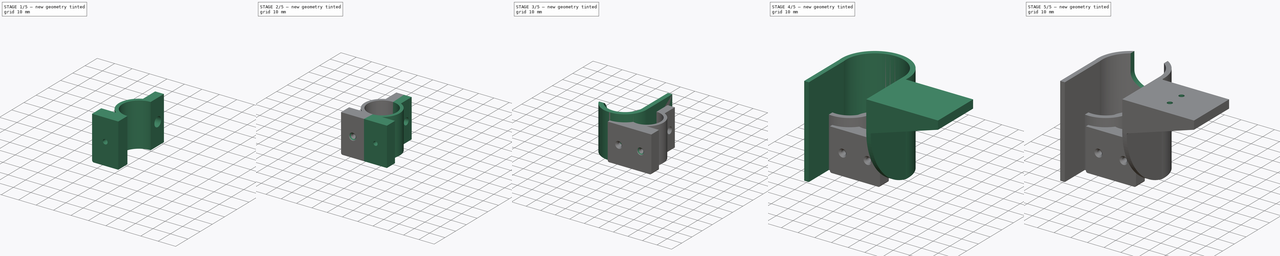
[diagram: build sequence overview — one tinted view per stage of 5, left to right]
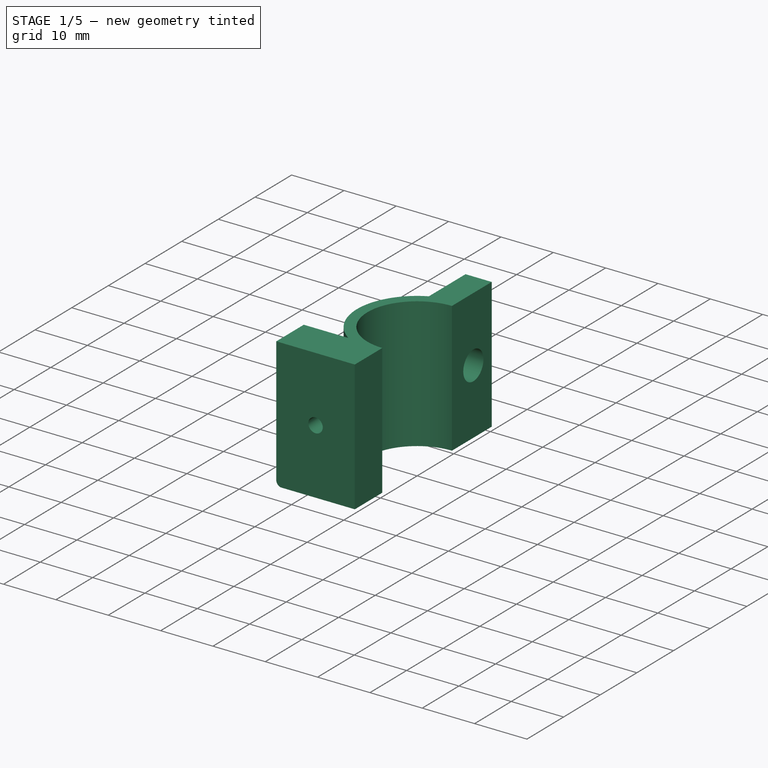
[diagram: stage 1 of 5 — iso view after this stage's code; geometry added in this stage tinted green]
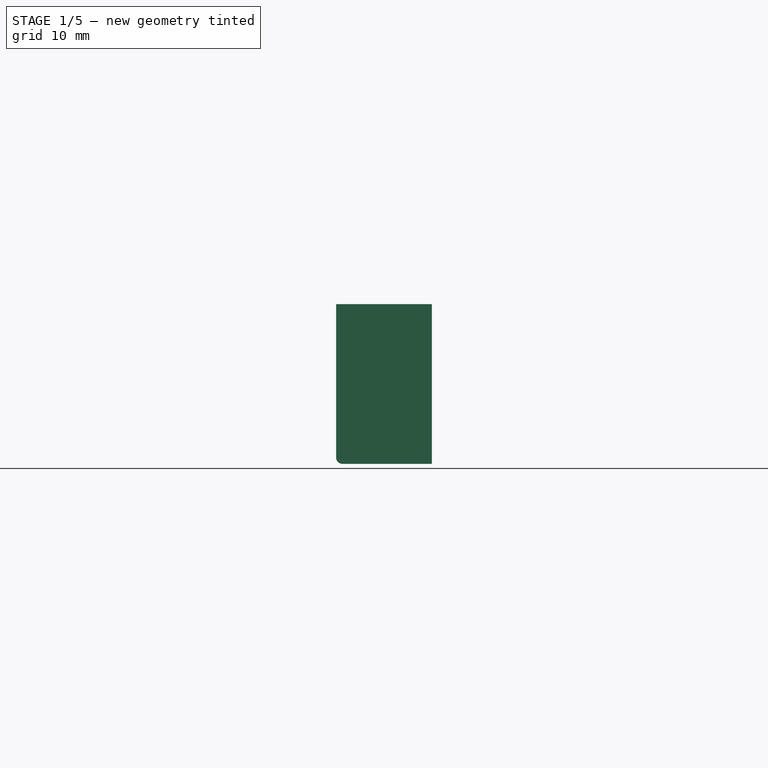
[diagram: stage 1 of 5 — front view after this stage's code; geometry added in this stage tinted green]
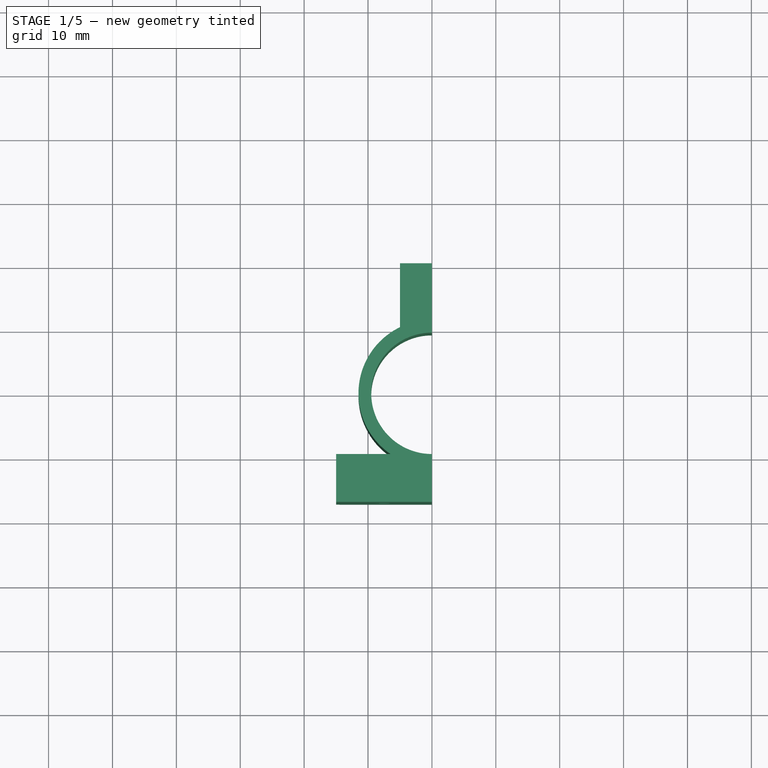
[diagram: stage 1 of 5 — top view after this stage's code; geometry added in this stage tinted green]
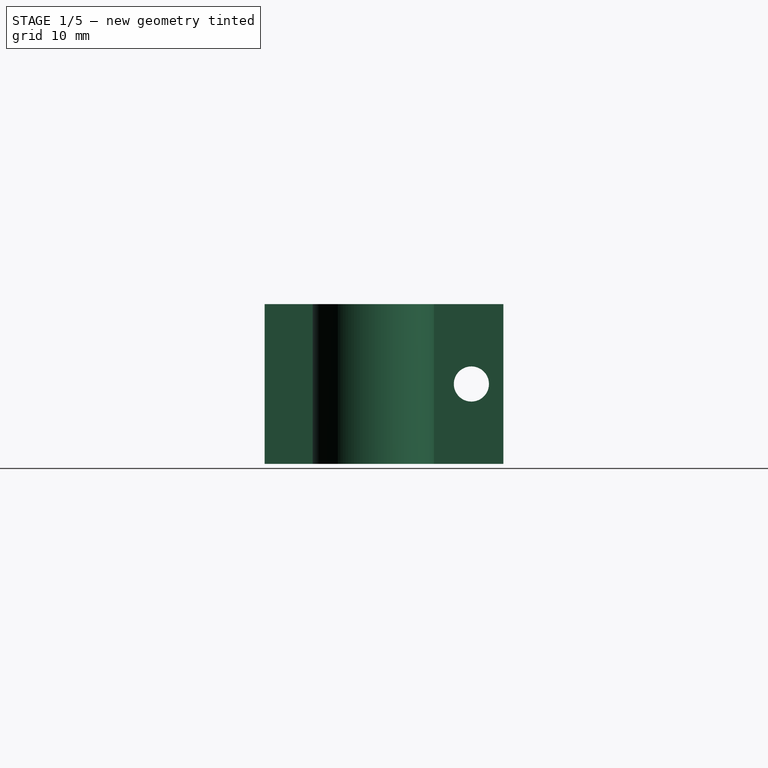
[diagram: stage 1 of 5 — right view after this stage's code; geometry added in this stage tinted green]
FCSTD DOCUMENT  (FreeCAD 1.1R14555 (Git shallow))
Label: hook
License: All rights reserved
LicenseURL: https://en.wikipedia.org/wiki/All_rights_reserved
objects: Sketcher::SketchObject×13, PartDesign::Pocket×8, PartDesign::Fillet×6, PartDesign::Pad×5, App::Point×4, PartDesign::Body×4, PartDesign::Chamfer×2
note: 93 computed .brp shape members not serialized (recipe doc carries the construction recipe); baked Part::Feature solids carry a one-line shape summary decoded from their .brp

FEATURE [PartDesign::Pad] Pad004
  Direction = (0,0,1)
  Length = 25
  Length2 = 10
  Profile = -> Sketch008
  ReferenceAxis = -> Sketch008 [N_Axis]
  Refine = true
  SideType = 0
  Suppressed = false
  Type = 0
  Type2 = 0
FEATURE [Sketcher::SketchObject] Sketch011
  ArcFitTolerance = 1e-06
  AttachmentSupport = -> [Pad004]
  ExternalGeometry = -> [Pad004]
  ExternalTypes = [0]
  FullyConstrained = true
  MakeInternals = false
  MapMode = 5
  Placement = pos=(0,-16.9984,0) rot=(1,0,0;1.5708rad)
  sketch-geometry (1):
    g0: Circle CenterX=-7.5 CenterY=12.5 CenterZ=0 NormalX=0 NormalY=0 NormalZ=1 AngleXU=0 Radius=1.375
  constraints (2):
    c: Diameter(g0) = 2.75
    c: Symmetric(g-3,g-1,g0)
FEATURE [PartDesign::Pocket] Pocket007
  BaseFeature = -> Pad004
  Direction = (0,1,-2e-16)
  Length = 7
  Length2 = 5
  Profile = -> Sketch011
  ReferenceAxis = -> Sketch011 [N_Axis]
  Refine = true
  SideType = 0
  Suppressed = false
  Type = 0
  Type2 = 0
FEATURE [Sketcher::SketchObject] Sketch012
  ArcFitTolerance = 1e-06
  AttachmentSupport = -> [Pocket007]
  ExternalGeometry = -> [Pocket007]
  ExternalTypes = [0,0]
  FullyConstrained = true
  MakeInternals = false
  MapMode = 5
  Placement = pos=(-5,0,0) rot=(0.57735,-0.57735,-0.57735;2.0944rad)
  sketch-geometry (1):
    g0: Circle CenterX=-15.3562 CenterY=12.5 CenterZ=0 NormalX=0 NormalY=0 NormalZ=1 AngleXU=0 Radius=2.75
  constraints (2):
    c: Diameter(g0) = 5.5
    c: Symmetric(g-4,g-3,g0)
FEATURE [PartDesign::Pocket] Pocket008
  BaseFeature = -> Pocket007
  Direction = (1,0,0)
  Length = 7
  Length2 = 5
  Profile = -> Sketch012
  ReferenceAxis = -> Sketch012 [N_Axis]
  Refine = true
  SideType = 0
  Suppressed = false
  Type = 0
  Type2 = 0
FEATURE [PartDesign::Fillet] Fillet012
  Base = -> Pocket008 [Edge14]
  BaseFeature = -> Pocket008
  Radius = 1
  Refine = true
  SupportTransform = false
  Suppressed = false
  UseAllEdges = false
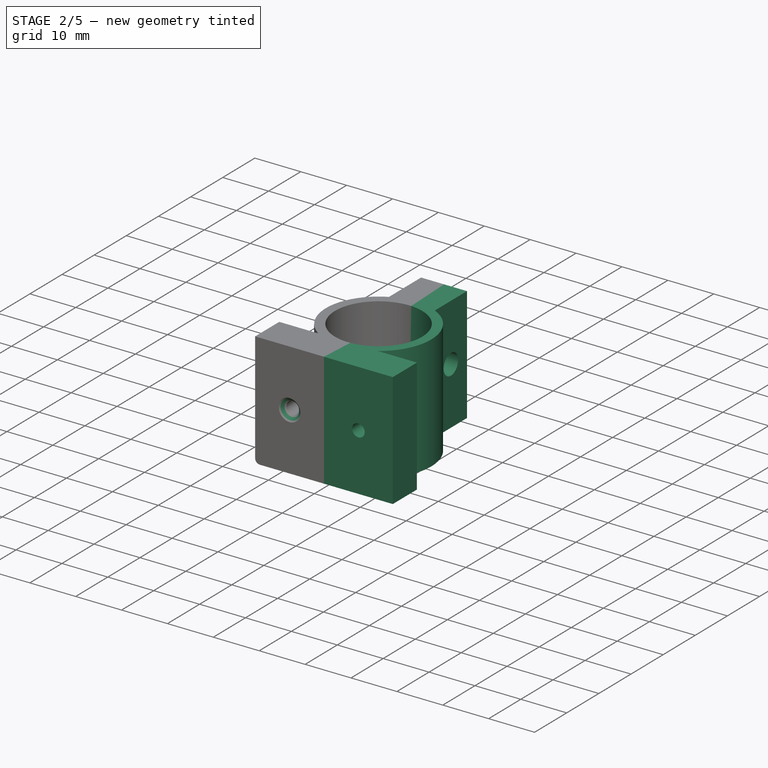
[diagram: stage 2 of 5 — iso view after this stage's code; geometry added in this stage tinted green]
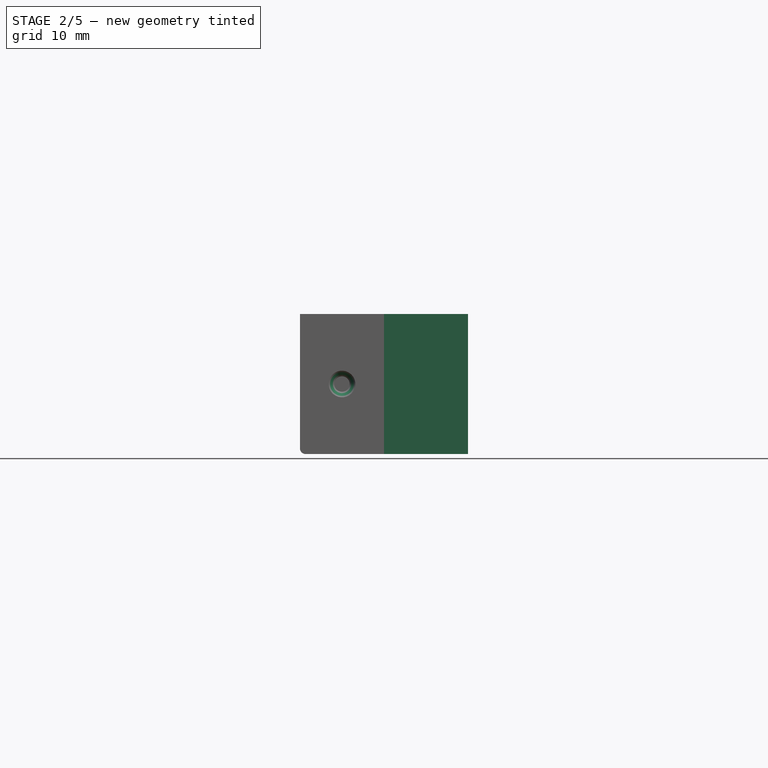
[diagram: stage 2 of 5 — front view after this stage's code; geometry added in this stage tinted green]
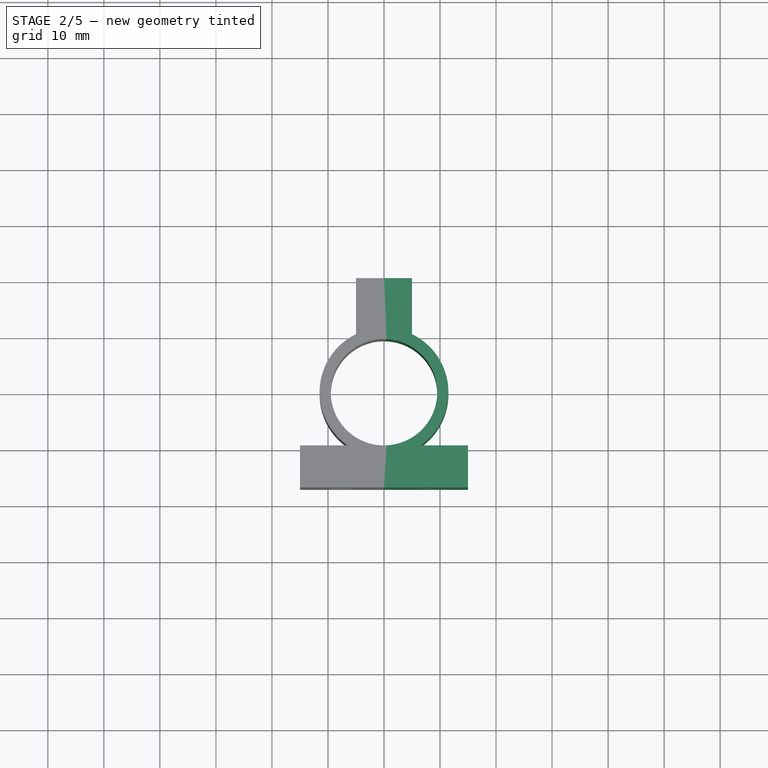
[diagram: stage 2 of 5 — top view after this stage's code; geometry added in this stage tinted green]
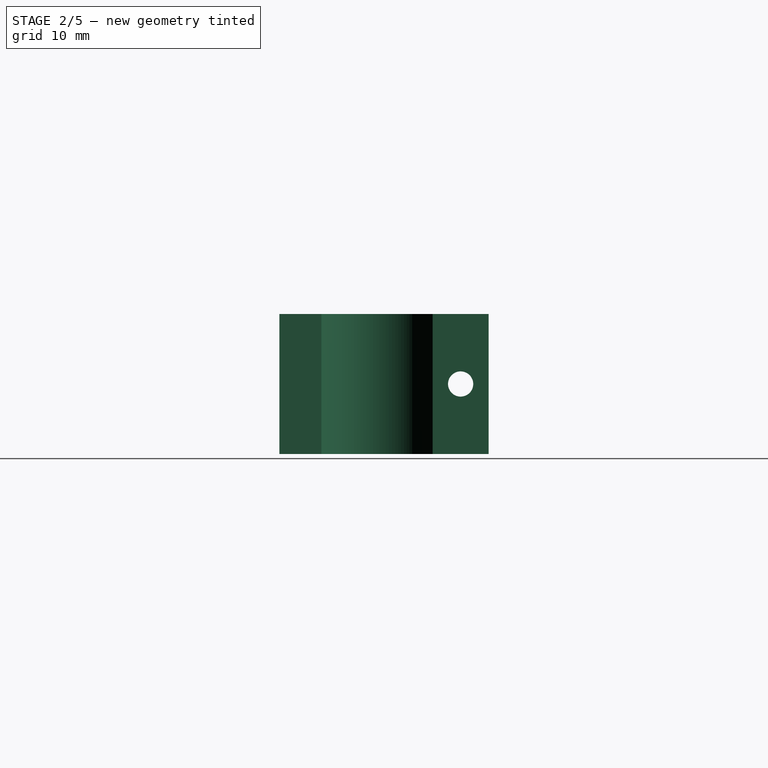
[diagram: stage 2 of 5 — right view after this stage's code; geometry added in this stage tinted green]
FEATURE [PartDesign::Body] Body
  AllowCompound = true
  Group = -> [Sketch,Pad,Sketch001,Pocket,Sketch002,Pad001,Sketch003,Pocket003,Fillet,Fillet008,Sketch006,Pocket004]
  Origin = -> Origin
  Tip = -> Pocket004
FEATURE [App::Point] Origin005
  Role = Origin
FEATURE [Sketcher::SketchObject] Sketch007
  ArcFitTolerance = 1e-06
  AttachmentSupport = -> [Origin004]
  ExternalTypes = [0]
  FullyConstrained = false
  MakeInternals = false
  MapMode = 5
  sketch-geometry (10):
    g0: ArcOfCircle CenterX=0 CenterY=0 CenterZ=0 NormalX=0 NormalY=0 NormalZ=1 AngleXU=0 Radius=9.5 StartAngle=4.71239 EndAngle=7.85398
    g1: ArcOfCircle CenterX=0 CenterY=0 CenterZ=0 NormalX=0 NormalY=0 NormalZ=1 AngleXU=0 Radius=11.5 StartAngle=5.31103 EndAngle=7.40418
    g2: LineSegment StartX=-1.7e-15 StartY=-9.5 StartZ=0 EndX=-1.7e-15 EndY=-17 EndZ=0
    g3: LineSegment StartX=2.9e-15 StartY=20.3562 StartZ=0 EndX=2.9e-15 EndY=10.3562 EndZ=0
    g4: LineSegment StartX=5 StartY=10.3562 StartZ=0 EndX=5 EndY=20.3562 EndZ=0
    g5: LineSegment StartX=5 StartY=20.3562 StartZ=0 EndX=2.7e-15 EndY=20.3562 EndZ=0
    g6: LineSegment StartX=2.9e-15 StartY=9.5 StartZ=0 EndX=2.9e-15 EndY=10.3562 EndZ=0
    g7: LineSegment StartX=-1.7e-15 StartY=-17 StartZ=0 EndX=15 EndY=-17 EndZ=0
    g8: LineSegment StartX=15 StartY=-17 StartZ=0 EndX=15 EndY=-9.5 EndZ=0
    g9: LineSegment StartX=15 StartY=-9.5 StartZ=0 EndX=6.48052 EndY=-9.50015 EndZ=0
  constraints (27):
    c: Coincident(g0,g-1)
    c: Coincident(g1,g0)
    c: Diameter(g0) = 19
    c: Coincident(g2,g0)
    c: Vertical(g2)
    c: Coincident(g4,g5)
    c: Coincident(g5,g3)
    c: Vertical(g3)
    c: Vertical(g4)
    c: Horizontal(g5)
    c: PointOnObject(g3,g-2)
    c: Distance(g5,g5) = 5
    c: DistanceY(g4,g4) = 10
    c: Coincident(g4,g1)
    c: Coincident(g6,g0)
    c: Coincident(g6,g3)
    c: Vertical(g6)
    c: PointOnObject(g0,g-2)
    c: DistanceY(g2,g2) = 7.5
    c: Coincident(g7,g2)
    c: Horizontal(g7)
    c: DistanceX(g7,g7) = 15
    c: Coincident(g8,g7)
    c: Vertical(g8)
    c: Coincident(g9,g8)
    c: Diameter(g1) = 23
    c: Coincident(g1,g9)
FEATURE [PartDesign::Pad] Pad003
  Direction = (0,0,1)
  Length = 25
  Length2 = 10
  Profile = -> Sketch007
  ReferenceAxis = -> Sketch007 [N_Axis]
  Refine = true
  SideType = 0
  Suppressed = false
  Type = 0
  Type2 = 0
FEATURE [App::Point] Origin007
  Role = Origin
FEATURE [Sketcher::SketchObject] Sketch008
  ArcFitTolerance = 1e-06
  AttachmentSupport = -> [Origin006]
  ExternalTypes = [0]
  FullyConstrained = false
  MakeInternals = false
  MapMode = 5
  sketch-geometry (9):
    g0: ArcOfCircle CenterX=0 CenterY=0 CenterZ=0 NormalX=0 NormalY=0 NormalZ=1 AngleXU=0 Radius=9.5 StartAngle=1.5708 EndAngle=4.71239
    g1: ArcOfCircle CenterX=0 CenterY=0 CenterZ=0 NormalX=0 NormalY=0 NormalZ=1 AngleXU=0 Radius=11.5 StartAngle=2.02059 EndAngle=4.11348
    g2: LineSegment StartX=-1.7e-15 StartY=-9.5 StartZ=0 EndX=-1.7e-15 EndY=-16.9984 EndZ=0
    g3: LineSegment StartX=6e-16 StartY=9.5 StartZ=0 EndX=6e-16 EndY=20.3562 EndZ=0
    g4: LineSegment StartX=-6.48303 StartY=-9.49844 StartZ=0 EndX=-15 EndY=-9.49844 EndZ=0
    g5: LineSegment StartX=-15 StartY=-9.49844 StartZ=0 EndX=-15 EndY=-16.9984 EndZ=0
    g6: LineSegment StartX=-15 StartY=-16.9984 StartZ=0 EndX=-1.8e-15 EndY=-16.9984 EndZ=0
    g7: LineSegment StartX=-5 StartY=10.3562 StartZ=0 EndX=-5 EndY=20.3562 EndZ=0
    g8: LineSegment StartX=-5 StartY=20.3562 StartZ=0 EndX=9e-16 EndY=20.3562 EndZ=0
  constraints (26):
    c: Coincident(g0,g-1)
    c: Coincident(g1,g0)
    c: PointOnObject(g0,g-2)
    c: Vertical(g2)
    c: Diameter(g0) = 19
    c: Coincident(g2,g0)
    c: Vertical(g3)
    c: Coincident(g4,g5)
    c: Coincident(g5,g6)
    c: Horizontal(g6)
    c: Vertical(g5)
    c: DistanceX(g6,g6) = 15
    c: PointOnObject(g0,g-2)
    c: DistanceY(g5,g5) = 7.5
    c: Diameter(g1) = 23
    c: Horizontal(g4)
    c: Coincident(g1,g4)
    c: Coincident(g2,g6)
    c: Coincident(g3,g0)
    c: Coincident(g7,g1)
    c: Vertical(g7)
    c: DistanceY(g7,g7) = 10
    c: Coincident(g8,g7)
    c: Coincident(g3,g8)
    c: Horizontal(g8)
    c: DistanceX(g8,g8) = 5
FEATURE [Sketcher::SketchObject] Sketch009
  ArcFitTolerance = 1e-06
  AttachmentSupport = -> [Pad003]
  ExternalGeometry = -> [Pad003]
  ExternalTypes = [0,0]
  FullyConstrained = true
  MakeInternals = false
  MapMode = 5
  Placement = pos=(0,-17,0) rot=(1,0,0;1.5708rad)
  sketch-geometry (1):
    g0: Circle CenterX=7.5 CenterY=12.5 CenterZ=0 NormalX=0 NormalY=0 NormalZ=1 AngleXU=0 Radius=1.375
  constraints (2):
    c: Diameter(g0) = 2.75
    c: Symmetric(g-4,g-3,g0)
FEATURE [PartDesign::Pocket] Pocket005
  BaseFeature = -> Pad003
  Direction = (0,1,-2e-16)
  Length = 7
  Length2 = 5
  Profile = -> Sketch009
  ReferenceAxis = -> Sketch009 [N_Axis]
  Refine = true
  SideType = 0
  Suppressed = false
  Type = 0
  Type2 = 0
FEATURE [Sketcher::SketchObject] Sketch010
  ArcFitTolerance = 1e-06
  AttachmentSupport = -> [Pocket005]
  ExternalGeometry = -> [Pocket005]
  ExternalTypes = [0,0]
  FullyConstrained = true
  MakeInternals = false
  MapMode = 5
  Placement = pos=(5,0,0) rot=(0.57735,0.57735,0.57735;2.0944rad)
  sketch-geometry (1):
    g0: Circle CenterX=15.3562 CenterY=12.5 CenterZ=0 NormalX=0 NormalY=0 NormalZ=1 AngleXU=0 Radius=2.25
  constraints (2):
    c: Diameter(g0) = 4.5
    c: Symmetric(g-4,g-3,g0)
FEATURE [PartDesign::Pocket] Pocket006
  BaseFeature = -> Pocket005
  Direction = (-1,0,0)
  Length = 5
  Length2 = 5
  Profile = -> Sketch010
  ReferenceAxis = -> Sketch010 [N_Axis]
  Refine = true
  SideType = 0
  Suppressed = false
  Type = 0
  Type2 = 0
FEATURE [PartDesign::Body] Body002  label="left"
  AllowCompound = true
  Group = -> [Sketch007,Pad003,Sketch009,Pocket005,Sketch010,Pocket006,Fillet011,Chamfer]
  Origin = -> Origin004
  Tip = -> Chamfer
FEATURE [PartDesign::Chamfer] Chamfer001
  Angle = 45
  Base = -> Fillet012 [Edge14]
  BaseFeature = -> Fillet012
  ChamferType = 0
  FlipDirection = false
  Refine = true
  Size = 1
  Size2 = 1
  SupportTransform = false
  Suppressed = false
  UseAllEdges = false
FEATURE [PartDesign::Body] Body003  label="right"
  AllowCompound = true
  Group = -> [Sketch008,Pad004,Sketch011,Pocket007,Sketch012,Pocket008,Fillet012,Chamfer001]
  Origin = -> Origin006
  Tip = -> Chamfer001
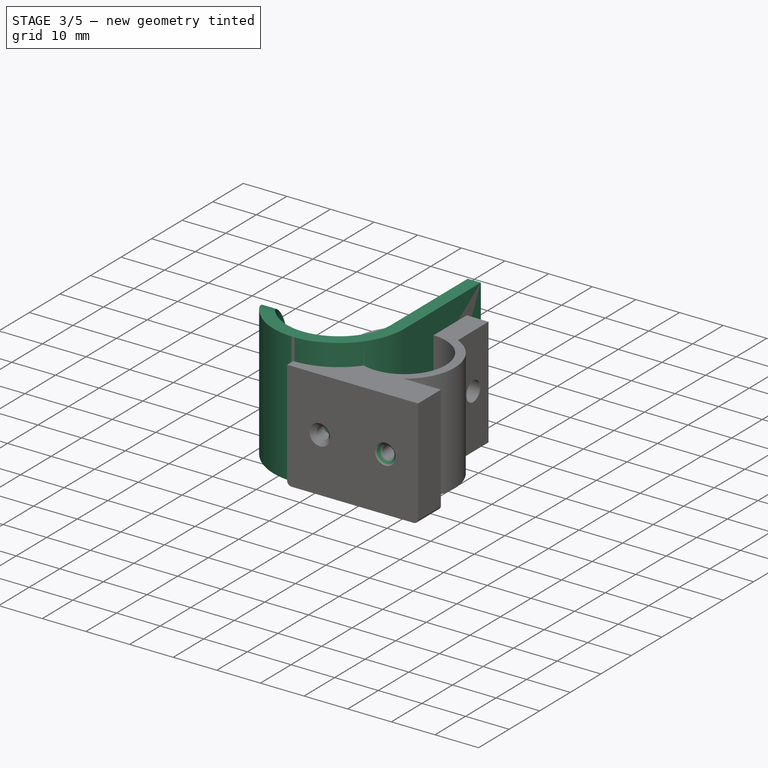
[diagram: stage 3 of 5 — iso view after this stage's code; geometry added in this stage tinted green]
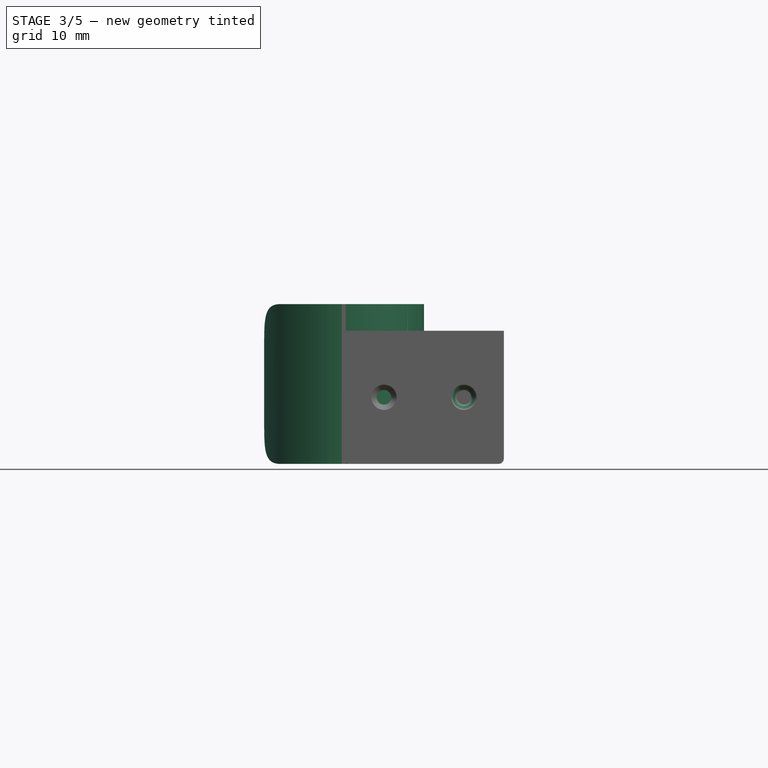
[diagram: stage 3 of 5 — front view after this stage's code; geometry added in this stage tinted green]
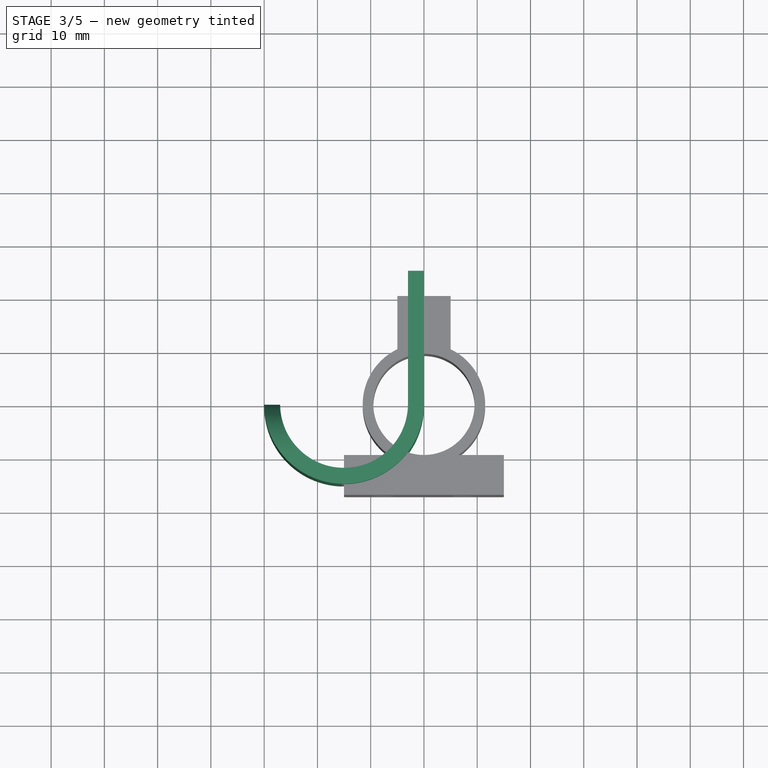
[diagram: stage 3 of 5 — top view after this stage's code; geometry added in this stage tinted green]
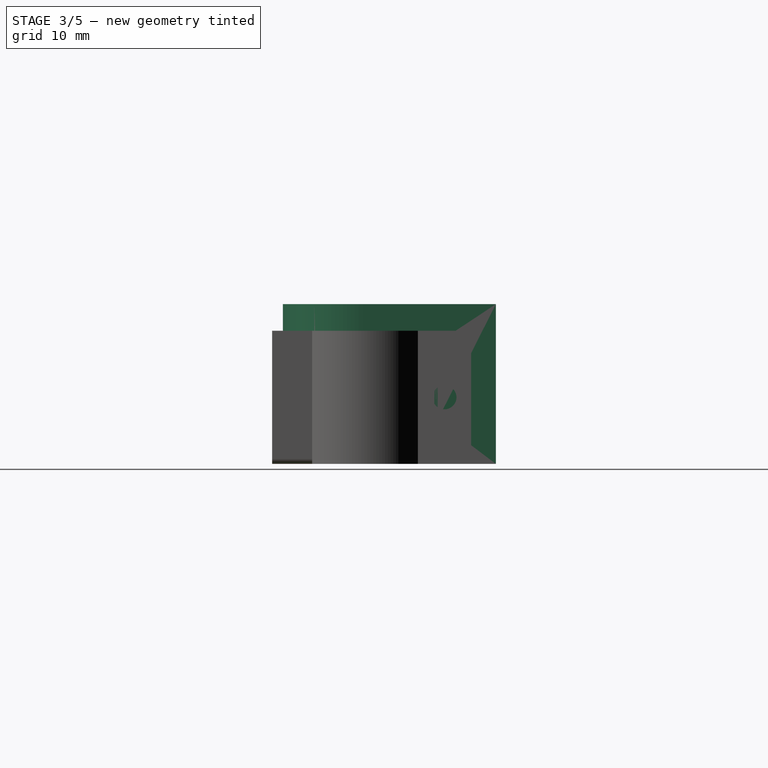
[diagram: stage 3 of 5 — right view after this stage's code; geometry added in this stage tinted green]
FEATURE [Sketcher::SketchObject] Sketch003
  ArcFitTolerance = 1e-06
  AttachmentSupport = -> [Pad001]
  ExternalGeometry = -> [Pad001]
  ExternalTypes = [0,0]
  FullyConstrained = true
  MakeInternals = false
  MapMode = 5
  Placement = pos=(0,0,54) rot=(0,0,1;0rad)
  sketch-geometry (2):
    g0: Circle CenterX=38.75 CenterY=-12 CenterZ=0 NormalX=0 NormalY=0 NormalZ=1 AngleXU=0 Radius=1.5
    g1: Circle CenterX=38.75 CenterY=-22 CenterZ=0 NormalX=0 NormalY=0 NormalZ=1 AngleXU=0 Radius=1.5
  constraints (6):
    c: Equal(g1,g0)
    c: Vertical(g0,g1)
    c: Diameter(g0) = 3
    c: DistanceY(g1,g0) = 10
    c: DistanceY(g0,g-3) = 10
    c: DistanceX(g-4,g1) = 21.5
FEATURE [App::Point] Origin003
  Role = Origin
FEATURE [Sketcher::SketchObject] Sketch004
  ArcFitTolerance = 1e-06
  AttachmentSupport = -> [Origin002]
  ExternalTypes = [0]
  FullyConstrained = false
  MakeInternals = false
  MapMode = 5
  sketch-geometry (6):
    g0: LineSegment StartX=-2.3537e-12 StartY=25 StartZ=0 EndX=-3 EndY=25 EndZ=0
    g1: LineSegment StartX=-3 StartY=25 StartZ=0 EndX=-3 EndY=-3.6e-15 EndZ=0
    g2: LineSegment StartX=-2.3537e-12 StartY=-1.69368e-11 StartZ=0 EndX=-2.3537e-12 EndY=25 EndZ=0
    g3: ArcOfCircle CenterX=-15 CenterY=0 CenterZ=0 NormalX=0 NormalY=0 NormalZ=1 AngleXU=0 Radius=15 StartAngle=3.14114 EndAngle=6.28319
    g4: ArcOfCircle CenterX=-15 CenterY=0 CenterZ=0 NormalX=0 NormalY=0 NormalZ=1 AngleXU=0 Radius=12 StartAngle=3.14103 EndAngle=6.28319
    g5: LineSegment StartX=-30 StartY=0.00680241 StartZ=0 EndX=-27 EndY=0.00680241 EndZ=0
  constraints (17):
    c: Coincident(g0,g1)
    c: Coincident(g2,g0)
    c: Horizontal(g0)
    c: Vertical(g1)
    c: Vertical(g2)
    c: PointOnObject(g1,g-1)
    c: DistanceX(g0,g0) = 3
    c: DistanceY(g2,g2) = 25
    c: PointOnObject(g3,g-1)
    c: Coincident(g4,g3)
    c: Horizontal(g5)
    c: Coincident(g5,g3)
    c: Diameter(g4) = 24
    c: Coincident(g5,g4)
    c: Coincident(g4,g1)
    c: Coincident(g2,g3)
    c: Coincident(g2,g-1)
FEATURE [PartDesign::Pad] Pad002
  Direction = (0,0,1)
  Length = 30
  Length2 = 10
  Profile = -> Sketch004
  ReferenceAxis = -> Sketch004 [N_Axis]
  Refine = true
  SideType = 0
  Suppressed = false
  Type = 0
  Type2 = 0
FEATURE [PartDesign::Pocket] Pocket009
  BaseFeature = -> Pad002
  Direction = (1,0,0)
  Length = 5
  Length2 = 5
  Profile = -> Sketch005
  ReferenceAxis = -> Sketch005 [N_Axis]
  Refine = true
  SideType = 0
  Suppressed = false
  Type = 1
  Type2 = 0
FEATURE [PartDesign::Fillet] Fillet009
  Base = -> Pocket009 [Edge19,Edge16]
  BaseFeature = -> Pocket009
  Radius = 9
  Refine = true
  SupportTransform = false
  Suppressed = false
  UseAllEdges = false
FEATURE [PartDesign::Body] Body001  label="hook"
  AllowCompound = true
  Group = -> [Sketch004,Pad002,Sketch005,Pocket009,Fillet009,Fillet010]
  Origin = -> Origin002
  Placement = pos=(15,-17.1,25) rot=(0.57735,0.57735,-0.57735;4.18879rad)
  Tip = -> Fillet010
FEATURE [PartDesign::Fillet] Fillet011
  Base = -> Pocket006 [Edge17]
  BaseFeature = -> Pocket006
  Radius = 1
  Refine = true
  SupportTransform = false
  Suppressed = false
  UseAllEdges = false
FEATURE [PartDesign::Chamfer] Chamfer
  Angle = 45
  Base = -> Fillet011 [Edge6]
  BaseFeature = -> Fillet011
  ChamferType = 0
  FlipDirection = false
  Refine = true
  Size = 1
  Size2 = 1
  SupportTransform = false
  Suppressed = false
  UseAllEdges = false
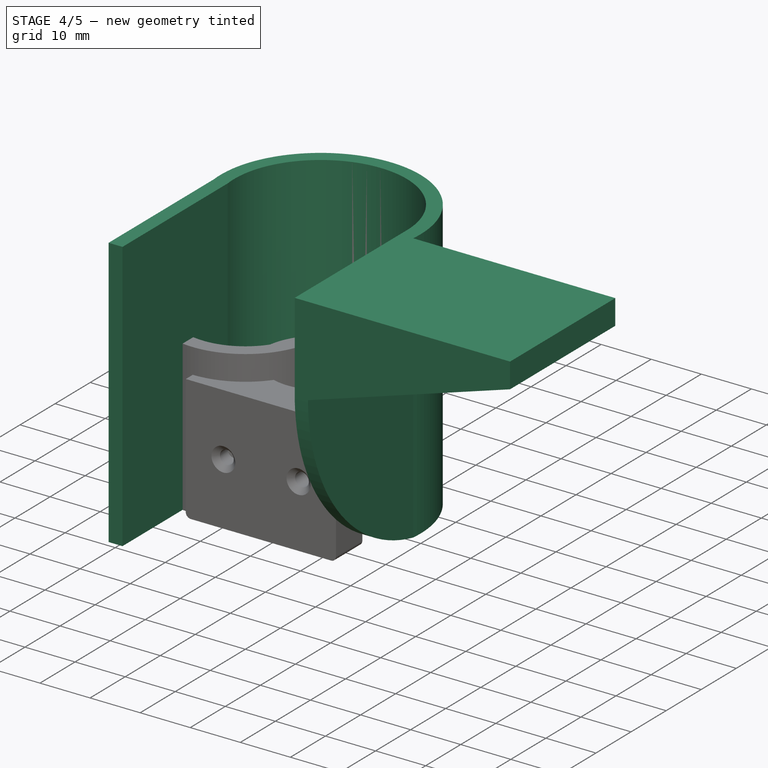
[diagram: stage 4 of 5 — iso view after this stage's code; geometry added in this stage tinted green]
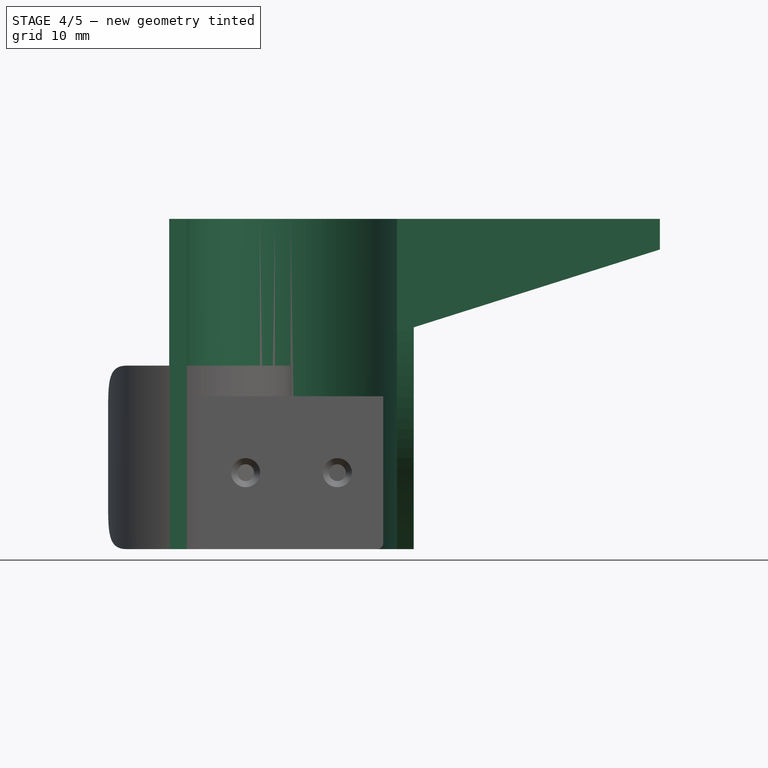
[diagram: stage 4 of 5 — front view after this stage's code; geometry added in this stage tinted green]
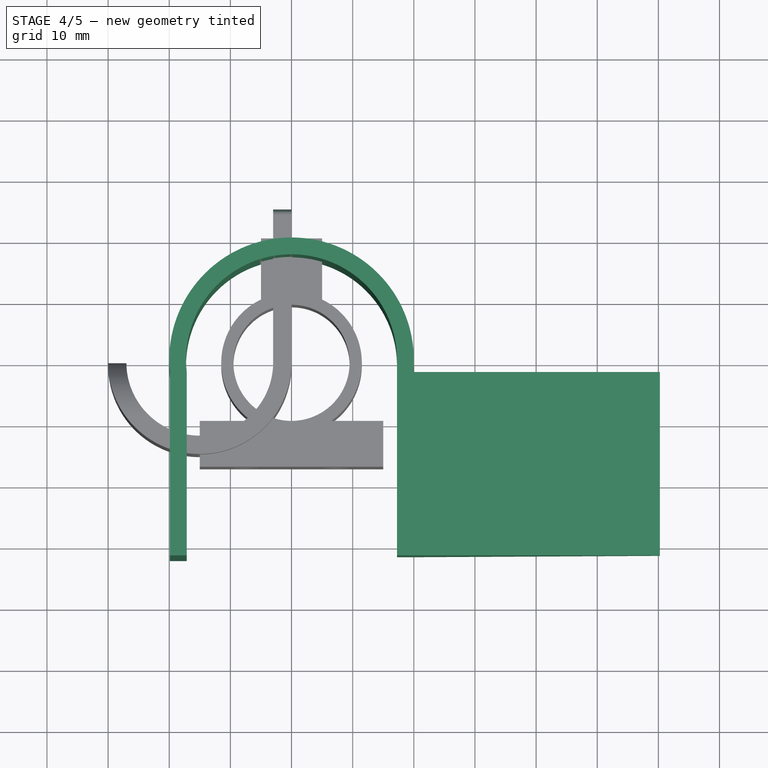
[diagram: stage 4 of 5 — top view after this stage's code; geometry added in this stage tinted green]
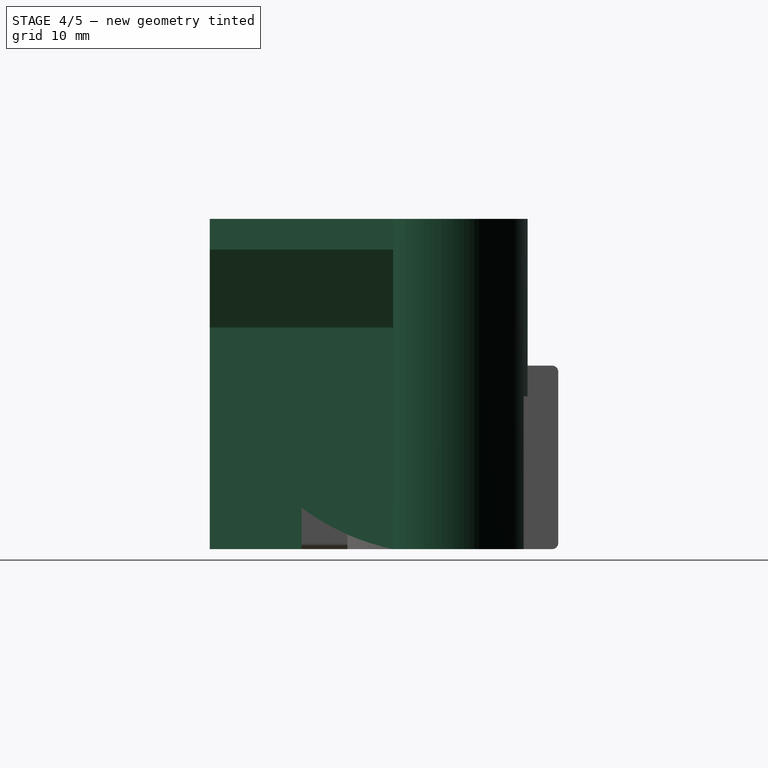
[diagram: stage 4 of 5 — right view after this stage's code; geometry added in this stage tinted green]
FEATURE [App::Point] Origin001
  Role = Origin
FEATURE [Sketcher::SketchObject] Sketch
  ArcFitTolerance = 1e-06
  AttachmentSupport = -> [Origin]
  ExternalTypes = [0]
  FullyConstrained = false
  MakeInternals = false
  MapMode = 5
  sketch-geometry (8):
    g0: ArcOfCircle CenterX=0 CenterY=0 CenterZ=0 NormalX=0 NormalY=0 NormalZ=1 AngleXU=0 Radius=20 StartAngle=6.18302 EndAngle=9.52495
    g1: ArcOfCircle CenterX=0 CenterY=0 CenterZ=0 NormalX=0 NormalY=0 NormalZ=1 AngleXU=0 Radius=17.25 StartAngle=2.25272e-06 EndAngle=3.25758
    g2: LineSegment StartX=-19.8997 StartY=-2 StartZ=0 EndX=-19.8997 EndY=-32 EndZ=0
    g3: LineSegment StartX=-19.8997 StartY=-32 StartZ=0 EndX=-17.1341 EndY=-32 EndZ=0
    g4: LineSegment StartX=-17.1341 StartY=-32 StartZ=0 EndX=-17.1341 EndY=-1.99631 EndZ=0
    g5: LineSegment StartX=17.25 StartY=3.88595e-05 StartZ=0 EndX=17.25 EndY=-32 EndZ=0
    g6: LineSegment StartX=19.8997 StartY=-32 StartZ=0 EndX=19.8997 EndY=-2 EndZ=0
    g7: LineSegment StartX=17.25 StartY=-32 StartZ=0 EndX=19.8997 EndY=-32 EndZ=0
  constraints (22):
    c: Coincident(g0,g-1)
    c: Coincident(g1,g0)
    c: Coincident(g2,g3)
    c: Coincident(g3,g4)
    c: Vertical(g2)
    c: Vertical(g4)
    c: Horizontal(g3)
    c: DistanceY(g2,g2) = 30
    c: Distance(g2,g-1) = 2
    c: Vertical(g5)
    c: Vertical(g6)
    c: Distance(g6,g-1) = 2
    c: DistanceY(g6,g6) = 30
    c: Diameter(g1) = 34.5
    c: Coincident(g5,g1)
    c: Coincident(g1,g4)
    c: Coincident(g0,g6)
    c: Diameter(g0) = 40
    c: Coincident(g2,g0)
    c: Horizontal(g5,g6)
    c: Coincident(g7,g5)
    c: Coincident(g7,g6)
FEATURE [PartDesign::Pad] Pad
  Direction = (0,0,1)
  Length = 54
  Length2 = 10
  Profile = -> Sketch
  ReferenceAxis = -> Sketch [N_Axis]
  Refine = true
  SideType = 0
  Suppressed = false
  Type = 0
  Type2 = 0
FEATURE [Sketcher::SketchObject] Sketch001
  ArcFitTolerance = 1e-06
  AttachmentSupport = -> [Pad]
  ExternalGeometry = -> [Pad]
  ExternalTypes = [0,0]
  FullyConstrained = false
  MakeInternals = false
  MapMode = 5
  Placement = pos=(19.8997,0,0) rot=(0.57735,0.57735,0.57735;2.0944rad)
  sketch-geometry (3):
    g0: ArcOfCircle CenterX=5.6649 CenterY=36.8933 CenterZ=0 NormalX=0 NormalY=0 NormalZ=1 AngleXU=0 Radius=37.6812 StartAngle=3.11222 EndAngle=4.50754
    g1: LineSegment StartX=-32 StartY=38 StartZ=0 EndX=-32 EndY=0 EndZ=0
    g2: LineSegment StartX=-32 StartY=0 StartZ=0 EndX=-2 EndY=0 EndZ=0
  constraints (7):
    c: PointOnObject(g0,g-4)
    c: Coincident(g0,g-3)
    c: Coincident(g1,g0)
    c: Coincident(g1,g-4)
    c: Coincident(g2,g1)
    c: Coincident(g2,g0)
    c: DistanceY(g0,g-4) = 16
FEATURE [PartDesign::Pocket] Pocket
  BaseFeature = -> Pad
  Direction = (-1,0,0)
  Length = 5
  Length2 = 5
  Profile = -> Sketch001
  ReferenceAxis = -> Sketch001 [N_Axis]
  Refine = true
  SideType = 0
  Suppressed = false
  Type = 2
  Type2 = 0
FEATURE [Sketcher::SketchObject] Sketch002
  ArcFitTolerance = 1e-06
  AttachmentSupport = -> [Pocket]
  ExternalGeometry = -> [Pocket]
  ExternalTypes = [0]
  FullyConstrained = false
  MakeInternals = false
  MapMode = 5
  Placement = pos=(0,-32,0) rot=(1,0,0;1.5708rad)
  sketch-geometry (4):
    g0: LineSegment StartX=60.2497 StartY=49 StartZ=0 EndX=60.2497 EndY=54 EndZ=0
    g1: LineSegment StartX=60.2497 StartY=54 StartZ=0 EndX=19.3997 EndY=54 EndZ=0
    g2: LineSegment StartX=19.3997 StartY=36.0818 StartZ=0 EndX=60.2497 EndY=49 EndZ=0
    g3: LineSegment StartX=19.3997 StartY=54 StartZ=0 EndX=19.3997 EndY=36.0818 EndZ=0
  constraints (11):
    c: Coincident(g0,g1)
    c: Horizontal(g1)
    c: DistanceX(g1,g1) = 40.85
    c: Distance(g2,g1) = 5
    c: Vertical(g0)
    c: Coincident(g2,g0)
    c: Vertical(g1,g2)
    c: Coincident(g3,g1)
    c: Coincident(g3,g2)
    c: Horizontal(g1,g-3)
    c: DistanceX(g2,g-3) = 0.5
FEATURE [PartDesign::Pad] Pad001
  BaseFeature = -> Pocket
  Direction = (0,-1,2e-16)
  Length = 30
  Length2 = 10
  Profile = -> Sketch002
  ReferenceAxis = -> Sketch002 [N_Axis]
  Refine = true
  Reversed = true
  SideType = 0
  Suppressed = false
  Type = 0
  Type2 = 0
FEATURE [PartDesign::Fillet] Fillet010
  Base = -> Fillet009 [Edge23,Edge5]
  BaseFeature = -> Fillet009
  Radius = 1
  Refine = true
  SupportTransform = false
  Suppressed = false
  UseAllEdges = false
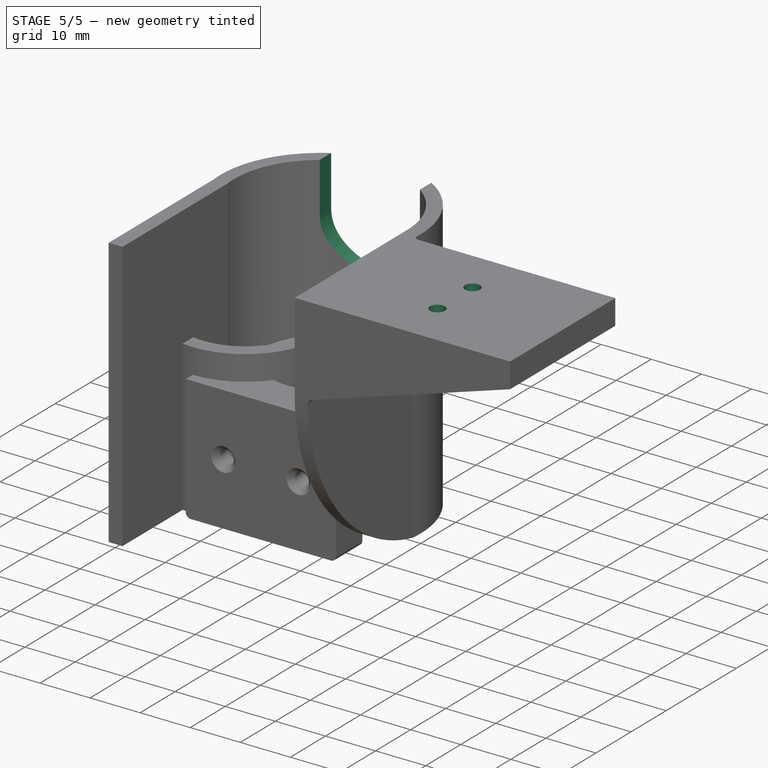
[diagram: stage 5 of 5 — iso view after this stage's code; geometry added in this stage tinted green]
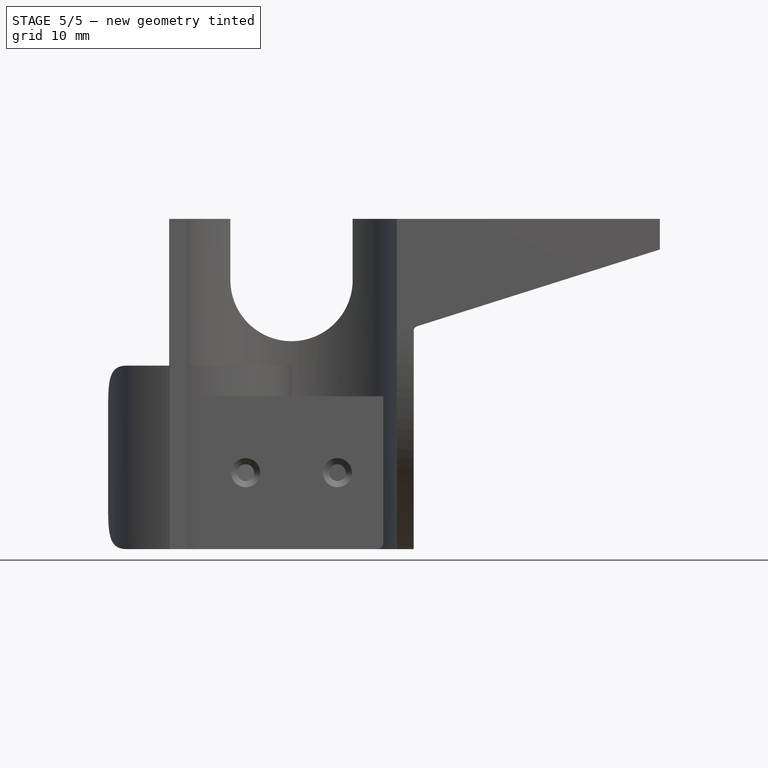
[diagram: stage 5 of 5 — front view after this stage's code; geometry added in this stage tinted green]
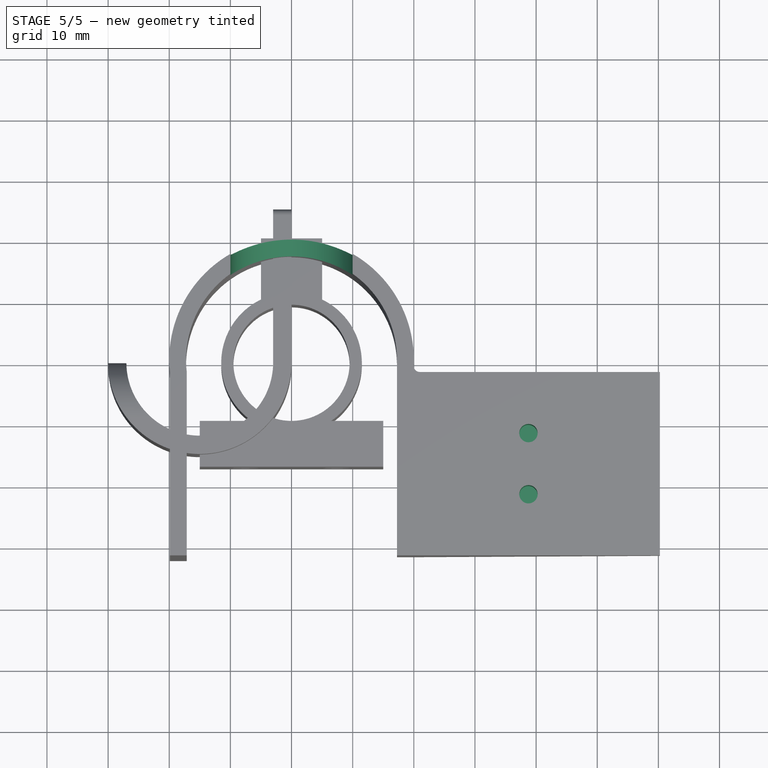
[diagram: stage 5 of 5 — top view after this stage's code; geometry added in this stage tinted green]
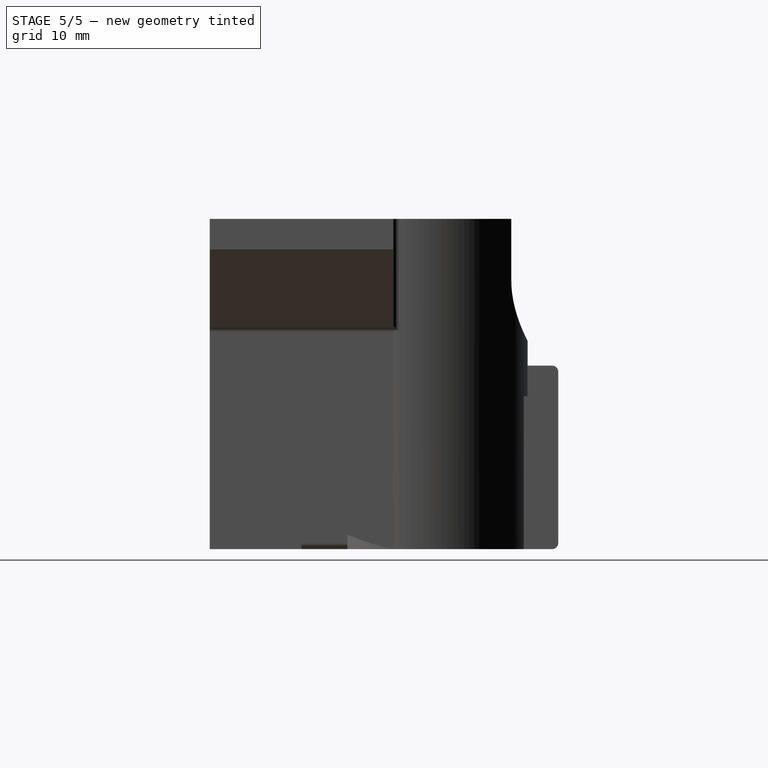
[diagram: stage 5 of 5 — right view after this stage's code; geometry added in this stage tinted green]
FEATURE [Sketcher::SketchObject] Sketch005
  ArcFitTolerance = 1e-06
  AttachmentOffset = pos=(0,0,30) rot=(0,0,1;0rad)
  AttachmentSupport = -> [Pad002]
  ExternalGeometry = -> [Pad002]
  ExternalTypes = [0,0]
  FullyConstrained = true
  MakeInternals = false
  MapMode = 5
  Placement = pos=(-33,0,0) rot=(0.57735,-0.57735,-0.57735;2.0944rad)
  sketch-geometry (2):
    g0: Circle CenterX=-12.5 CenterY=7.5 CenterZ=0 NormalX=0 NormalY=0 NormalZ=1 AngleXU=0 Radius=1.75
    g1: Circle CenterX=-12.5 CenterY=22.5 CenterZ=0 NormalX=0 NormalY=0 NormalZ=1 AngleXU=0 Radius=1.75
  constraints (6):
    c: Equal(g1,g0)
    c: Diameter(g1) = 3.5
    c: DistanceY(g0,g1) = 15
    c: DistanceX(g-3,g0) = 12.5
    c: DistanceX(g-4,g1) = 12.5
    c: DistanceY(g-3,g0) = 7.5
FEATURE [PartDesign::Pocket] Pocket003
  BaseFeature = -> Pad001
  Direction = (0,0,-1)
  Length = 10
  Length2 = 5
  Profile = -> Sketch003
  ReferenceAxis = -> Sketch003 [N_Axis]
  Refine = true
  SideType = 0
  Suppressed = false
  Type = 0
  Type2 = 0
FEATURE [PartDesign::Fillet] Fillet
  Base = -> Pocket003 [Edge32]
  BaseFeature = -> Pocket003
  Radius = 1
  Refine = true
  SupportTransform = false
  Suppressed = false
  UseAllEdges = false
FEATURE [PartDesign::Fillet] Fillet008
  Base = -> Fillet [Edge42]
  BaseFeature = -> Fillet
  Radius = 1
  Refine = true
  SupportTransform = false
  Suppressed = false
  UseAllEdges = false
FEATURE [Sketcher::SketchObject] Sketch006
  ArcFitTolerance = 1e-06
  AttachmentOffset = pos=(0,0,22) rot=(0,0,1;0rad)
  AttachmentSupport = -> [Fillet008]
  ExternalGeometry = -> [Fillet008]
  ExternalTypes = [0]
  FullyConstrained = false
  MakeInternals = false
  MapMode = 5
  Placement = pos=(0,20,-4.9e-15) rot=(0,0.707107,0.707107;3.14159rad)
  sketch-geometry (4):
    g0: ArcOfCircle CenterX=0 CenterY=44 CenterZ=0 NormalX=0 NormalY=0 NormalZ=1 AngleXU=0 Radius=10 StartAngle=3.14159 EndAngle=6.28319
    g1: LineSegment StartX=-10 StartY=54 StartZ=0 EndX=-10 EndY=44 EndZ=0
    g2: LineSegment StartX=10 StartY=44 StartZ=0 EndX=10 EndY=54 EndZ=0
    g3: LineSegment StartX=10 StartY=54 StartZ=0 EndX=-10 EndY=54 EndZ=0
  constraints (12):
    c: PointOnObject(g0,g-2)
    c: DistanceY(g0,g-3) = 10
    c: Coincident(g2,g3)
    c: Coincident(g3,g1)
    c: Vertical(g1)
    c: Vertical(g2)
    c: Horizontal(g3)
    c: PointOnObject(g1,g-3)
    c: DistanceY(g2,g2) = 10
    c: DistanceX(g3,g3) = 20
    c: Coincident(g2,g0)
    c: Coincident(g0,g1)
FEATURE [PartDesign::Pocket] Pocket004
  BaseFeature = -> Fillet008
  Direction = (0,-1,0)
  Length = 5
  Length2 = 5
  Profile = -> Sketch006
  ReferenceAxis = -> Sketch006 [N_Axis]
  Refine = true
  SideType = 0
  Suppressed = false
  Type = 1
  Type2 = 0
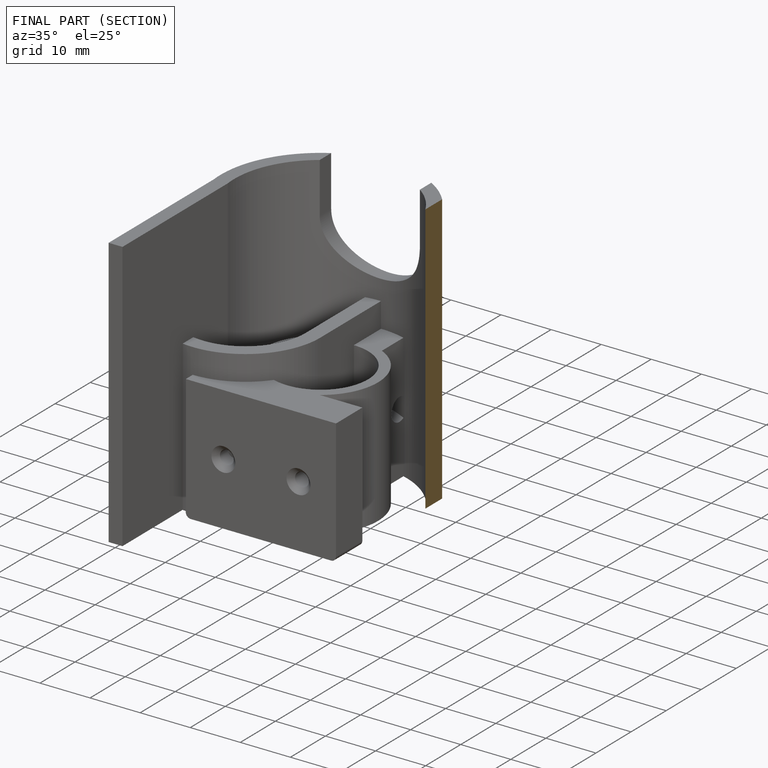
[diagram: finished part — half-section view (interior)]
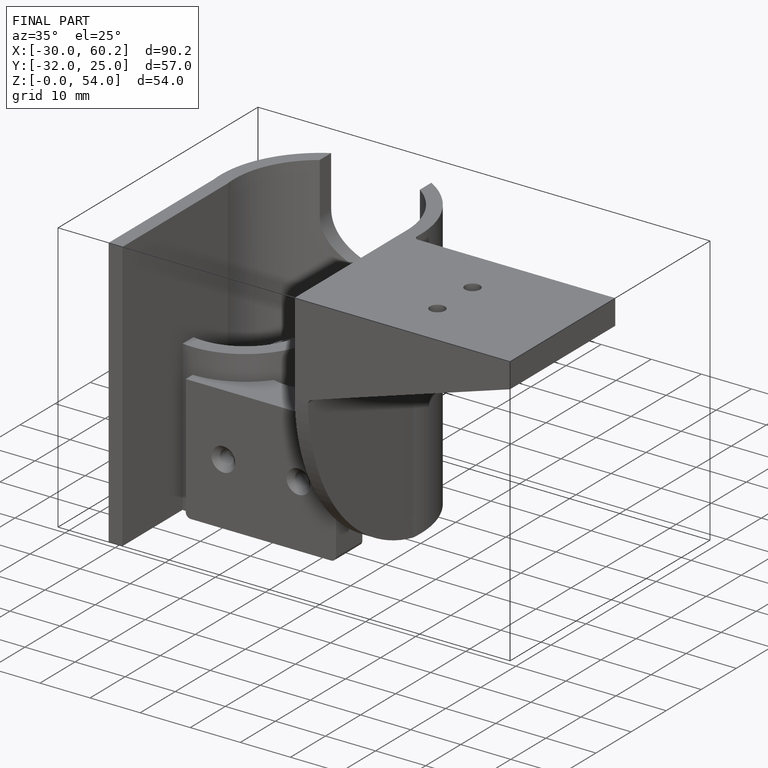
[diagram: finished part — iso view with bounding-box wireframe]
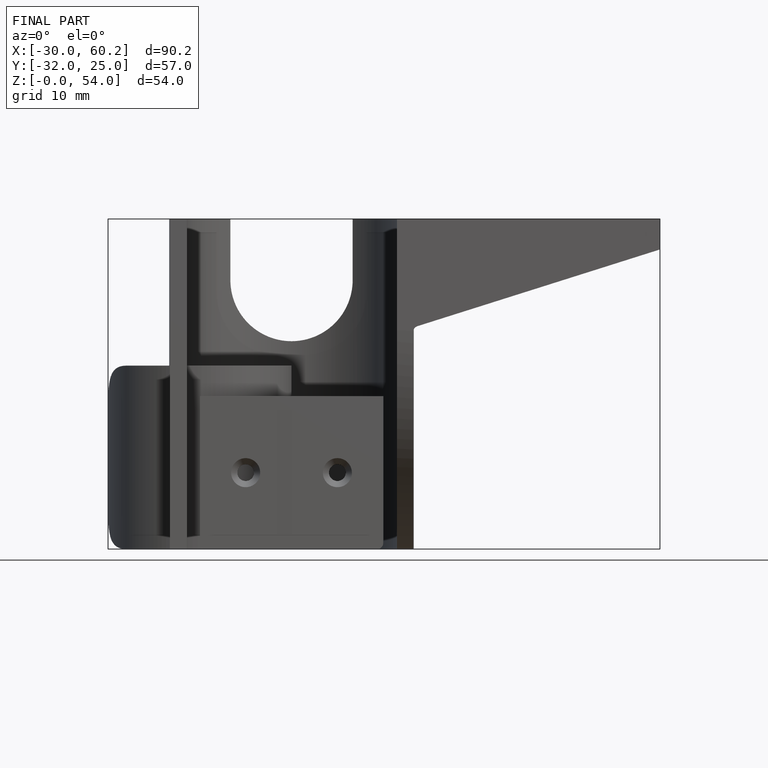
[diagram: finished part — front view with bounding-box wireframe]
